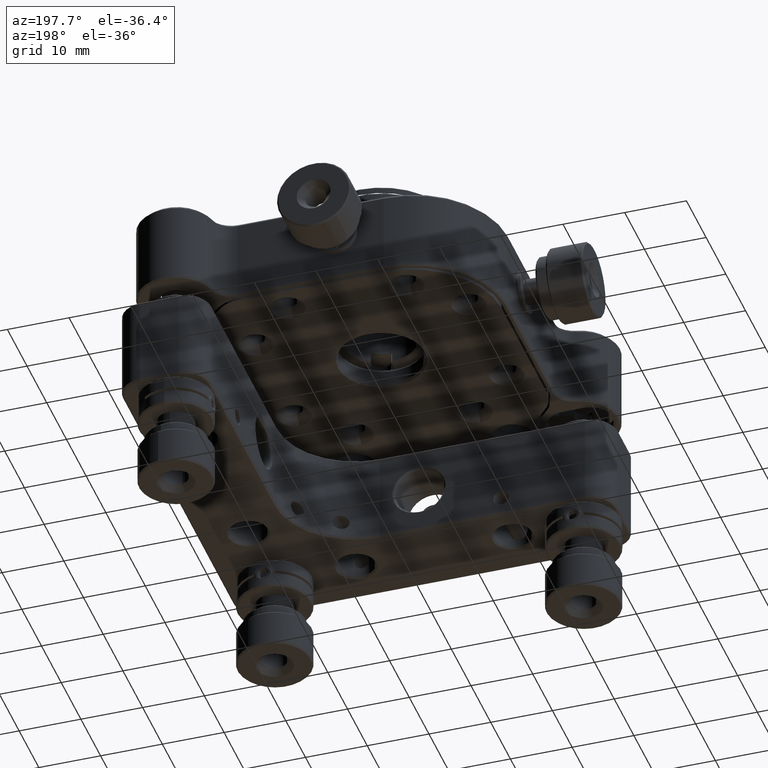
[diagram: clean part render]
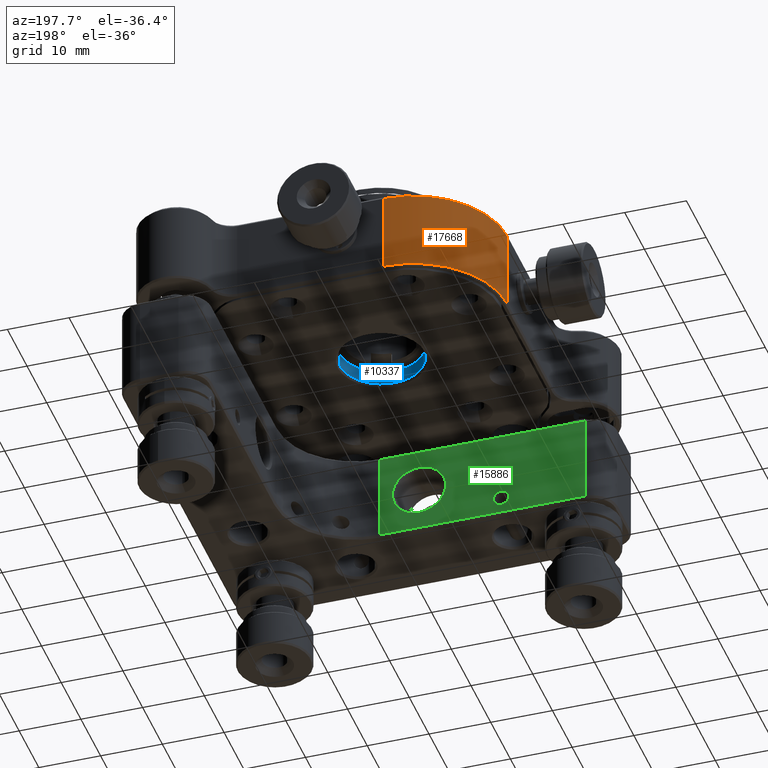
[diagram: same view with three faces highlighted in distinct colors, each labeled with its STEP entity id]
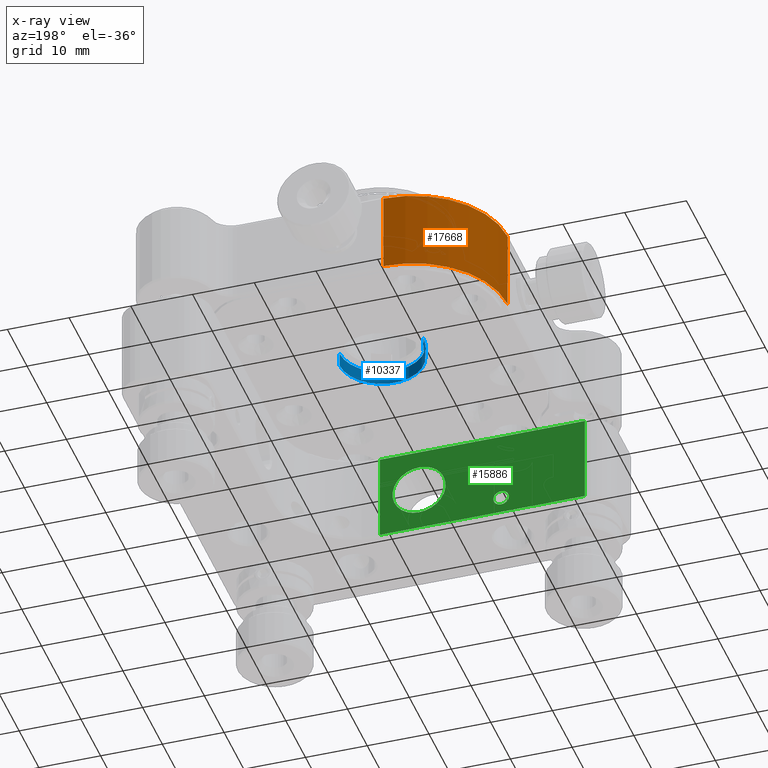
[diagram: x-ray of the same camera — body ghosted, the three highlighted faces saturated]
A machine part, auxiliary view with three faces highlighted in distinct colors.
The next image is the same camera in x-ray (body ghosted, the three faces saturated) — at least one of them is partly hidden behind the body in this view.
Their STEP definitions:

[orange] entity #17668 — the highlighted cylindrical surface (partial cylindrical patch) has radius 15.24 mm, axis along (0, 0, -1).
#113 = CYLINDRICAL_SURFACE ( 'NONE', #5315, 15.24000000000000021 ) ;
#407 = ORIENTED_EDGE ( 'NONE', *, *, #1366, .T. ) ;
#1366 = EDGE_CURVE ( 'NONE', #13804, #10016, #4451, .T. ) ;
#1644 = CARTESIAN_POINT ( 'NONE',  ( -5.080000000000000071, 5.080000000000000071, 7.683000000000000718 ) ) ;
#2543 = EDGE_CURVE ( 'NONE', #10016, #20684, #20025, .T. ) ;
#2690 = DIRECTION ( 'NONE',  ( 0.0000000000000000000, 0.0000000000000000000, -1.000000000000000000 ) ) ;
#3204 = CIRCLE ( 'NONE', #15581, 15.24000000000000021 ) ;
#3359 = VECTOR ( 'NONE', #2690, 1000.000000000000000 ) ;
#3549 = ORIENTED_EDGE ( 'NONE', *, *, #18022, .T. ) ;
#4451 = LINE ( 'NONE', #10968, #3359 ) ;
#4943 = EDGE_CURVE ( 'NONE', #18675, #20684, #11838, .T. ) ;
#5315 = AXIS2_PLACEMENT_3D ( 'NONE', #15496, #6768, #20218 ) ;
#5386 = CARTESIAN_POINT ( 'NONE',  ( -20.32000000000000028, 5.080000000000000071, -5.270999999999999908 ) ) ;
#6557 = DIRECTION ( 'NONE',  ( 1.000000000000000000, 0.0000000000000000000, 0.0000000000000000000 ) ) ;
#6699 = CARTESIAN_POINT ( 'NONE',  ( -5.080000000000000071, 20.32000000000000028, -5.270999999999999908 ) ) ;
#6768 = DIRECTION ( 'NONE',  ( 0.0000000000000000000, 0.0000000000000000000, -1.000000000000000000 ) ) ;
#6850 = DIRECTION ( 'NONE',  ( 1.000000000000000000, 0.0000000000000000000, 0.0000000000000000000 ) ) ;
#8309 = DIRECTION ( 'NONE',  ( 0.0000000000000000000, 0.0000000000000000000, -1.000000000000000000 ) ) ;
#8544 = CARTESIAN_POINT ( 'NONE',  ( -5.080000000000000071, 5.080000000000000071, -5.270999999999999908 ) ) ;
#8644 = CARTESIAN_POINT ( 'NONE',  ( -5.080000000000000071, 20.32000000000000028, 7.683000000000000718 ) ) ;
#10016 = VERTEX_POINT ( 'NONE', #6699 ) ;
#10172 = CARTESIAN_POINT ( 'NONE',  ( -20.32000000000000028, 5.080000000000000071, 8.444999999999998508 ) ) ;
#10190 = DIRECTION ( 'NONE',  ( 0.0000000000000000000, 0.0000000000000000000, 1.000000000000000000 ) ) ;
#10968 = CARTESIAN_POINT ( 'NONE',  ( -5.080000000000000071, 20.32000000000000028, 8.444999999999998508 ) ) ;
#11838 = LINE ( 'NONE', #10172, #12949 ) ;
#12949 = VECTOR ( 'NONE', #8309, 1000.000000000000000 ) ;
#12988 = AXIS2_PLACEMENT_3D ( 'NONE', #8544, #10190, #6557 ) ;
#13804 = VERTEX_POINT ( 'NONE', #8644 ) ;
#15496 = CARTESIAN_POINT ( 'NONE',  ( -5.080000000000000071, 5.080000000000000071, 8.444999999999998508 ) ) ;
#15581 = AXIS2_PLACEMENT_3D ( 'NONE', #1644, #18331, #6850 ) ;
#16130 = ORIENTED_EDGE ( 'NONE', *, *, #4943, .F. ) ;
#16760 = EDGE_LOOP ( 'NONE', ( #16130, #3549, #407, #19015 ) ) ;
#17668 = ADVANCED_FACE ( 'NONE', ( #21869 ), #113, .T. ) ;
#18022 = EDGE_CURVE ( 'NONE', #18675, #13804, #3204, .T. ) ;
#18250 = CARTESIAN_POINT ( 'NONE',  ( -20.32000000000000028, 5.080000000000000071, 7.683000000000000718 ) ) ;
#18331 = DIRECTION ( 'NONE',  ( 0.0000000000000000000, 0.0000000000000000000, -1.000000000000000000 ) ) ;
#18675 = VERTEX_POINT ( 'NONE', #18250 ) ;
#19015 = ORIENTED_EDGE ( 'NONE', *, *, #2543, .T. ) ;
#20025 = CIRCLE ( 'NONE', #12988, 15.24000000000000021 ) ;
#20218 = DIRECTION ( 'NONE',  ( -1.000000000000000000, 0.0000000000000000000, 0.0000000000000000000 ) ) ;
#20684 = VERTEX_POINT ( 'NONE', #5386 ) ;
#21869 = FACE_OUTER_BOUND ( 'NONE', #16760, .T. ) ;

[blue] entity #10337 — the highlighted cylindrical surface (partial cylindrical patch) has radius 6.7945 mm, axis along (-0, -0, -1).
#261 = DIRECTION ( 'NONE',  ( 1.979432085491225161E-34, 1.550593105024649954E-18, 1.000000000000000000 ) ) ;
#315 = AXIS2_PLACEMENT_3D ( 'NONE', #14659, #8136, #11341 ) ;
#1554 = CARTESIAN_POINT ( 'NONE',  ( -4.254499999999999282, -2.540000000000000036, -5.085059094877490971 ) ) ;
#1905 = EDGE_CURVE ( 'NONE', #17502, #8453, #8299, .T. ) ;
#2810 = CIRCLE ( 'NONE', #315, 6.794500000000000206 ) ;
#2990 = VERTEX_POINT ( 'NONE', #13548 ) ;
#4972 = DIRECTION ( 'NONE',  ( 5.204170427930419742E-18, -1.550593105024649954E-18, -1.000000000000000000 ) ) ;
#5950 = CARTESIAN_POINT ( 'NONE',  ( 9.334500000000000242, -2.540000000000000036, -5.085059094877490971 ) ) ;
#6420 = CARTESIAN_POINT ( 'NONE',  ( -4.254499999999999282, -2.540000000000000036, -2.350000000000000089 ) ) ;
#6957 = EDGE_LOOP ( 'NONE', ( #13800, #20074, #11567, #12816 ) ) ;
#7068 = CARTESIAN_POINT ( 'NONE',  ( 9.334500000000000242, -2.540000000000000036, -2.789940905122514803 ) ) ;
#8136 = DIRECTION ( 'NONE',  ( -1.979432085491225161E-34, -1.550593105024649954E-18, -1.000000000000000000 ) ) ;
#8299 = LINE ( 'NONE', #13158, #16852 ) ;
#8453 = VERTEX_POINT ( 'NONE', #5950 ) ;
#9041 = DIRECTION ( 'NONE',  ( -1.979432085491225161E-34, -1.550593105024649954E-18, -1.000000000000000000 ) ) ;
#9292 = VECTOR ( 'NONE', #9733, 1000.000000000000000 ) ;
#9733 = DIRECTION ( 'NONE',  ( 5.204170427930419742E-18, -1.550593105024649954E-18, -1.000000000000000000 ) ) ;
#10182 = EDGE_CURVE ( 'NONE', #2990, #17502, #21488, .T. ) ;
#10337 = ADVANCED_FACE ( 'NONE', ( #17538 ), #11007, .F. ) ;
#10891 = DIRECTION ( 'NONE',  ( 1.000000000000000000, -1.276564483020683708E-16, 0.0000000000000000000 ) ) ;
#11007 = CYLINDRICAL_SURFACE ( 'NONE', #14817, 6.794500000000000206 ) ;
#11341 = DIRECTION ( 'NONE',  ( 1.000000000000000000, -1.276564483020683708E-16, 0.0000000000000000000 ) ) ;
#11567 = ORIENTED_EDGE ( 'NONE', *, *, #1905, .T. ) ;
#12455 = CARTESIAN_POINT ( 'NONE',  ( 2.540000000000000036, -2.540000000000000036, -2.350000000000000089 ) ) ;
#12485 = VERTEX_POINT ( 'NONE', #1554 ) ;
#12816 = ORIENTED_EDGE ( 'NONE', *, *, #16823, .T. ) ;
#13158 = CARTESIAN_POINT ( 'NONE',  ( 9.334500000000000242, -2.540000000000000036, -2.350000000000000089 ) ) ;
#13548 = CARTESIAN_POINT ( 'NONE',  ( -4.254499999999999282, -2.540000000000000036, -2.789940905122514803 ) ) ;
#13800 = ORIENTED_EDGE ( 'NONE', *, *, #15108, .F. ) ;
#13867 = DIRECTION ( 'NONE',  ( 1.000000000000000000, -1.276564483020683708E-16, 0.0000000000000000000 ) ) ;
#14659 = CARTESIAN_POINT ( 'NONE',  ( 2.540000000000000036, -2.540000000000000036, -5.085059094877490971 ) ) ;
#14817 = AXIS2_PLACEMENT_3D ( 'NONE', #12455, #9041, #10891 ) ;
#15108 = EDGE_CURVE ( 'NONE', #2990, #12485, #21426, .T. ) ;
#15429 = CARTESIAN_POINT ( 'NONE',  ( 2.540000000000000036, -2.540000000000000036, -2.789940905122514803 ) ) ;
#16823 = EDGE_CURVE ( 'NONE', #8453, #12485, #2810, .T. ) ;
#16852 = VECTOR ( 'NONE', #4972, 1000.000000000000000 ) ;
#17502 = VERTEX_POINT ( 'NONE', #7068 ) ;
#17538 = FACE_OUTER_BOUND ( 'NONE', #6957, .T. ) ;
#20074 = ORIENTED_EDGE ( 'NONE', *, *, #10182, .T. ) ;
#20430 = AXIS2_PLACEMENT_3D ( 'NONE', #15429, #261, #13867 ) ;
#21426 = LINE ( 'NONE', #6420, #9292 ) ;
#21488 = CIRCLE ( 'NONE', #20430, 6.794500000000000206 ) ;

[green] entity #15886 — the highlighted planar face has unit normal (0, -1, -0).
#5 = VERTEX_POINT ( 'NONE', #10318 ) ;
#324 = EDGE_CURVE ( 'NONE', #20679, #2388, #14945, .T. ) ;
#786 = DIRECTION ( 'NONE',  ( 5.463291437797939957E-16, -1.000000000000000000, -1.203099312152369938E-17 ) ) ;
#1255 = CARTESIAN_POINT ( 'NONE',  ( -24.32099999999999795, -21.58999999999999986, -9.825000000000020606 ) ) ;
#1627 = DIRECTION ( 'NONE',  ( -1.000000000000000000, -5.463291437797939957E-16, 4.760512959350093720E-17 ) ) ;
#1963 = CARTESIAN_POINT ( 'NONE',  ( 8.890000000000000568, -21.58999999999999986, -24.22500000000000497 ) ) ;
#2009 = VECTOR ( 'NONE', #3378, 1000.000000000000000 ) ;
#2228 = CARTESIAN_POINT ( 'NONE',  ( -24.32099999999999795, -21.58999999999999986, -25.01899999999999835 ) ) ;
#2388 = VERTEX_POINT ( 'NONE', #7235 ) ;
#2582 = DIRECTION ( 'NONE',  ( 5.463291437797939957E-16, -1.000000000000000000, -1.203099312152369938E-17 ) ) ;
#2676 = DIRECTION ( 'NONE',  ( 1.000000000000000000, 8.068481283613033115E-16, 0.0000000000000000000 ) ) ;
#2901 = ORIENTED_EDGE ( 'NONE', *, *, #4802, .T. ) ;
#3378 = DIRECTION ( 'NONE',  ( 1.000000000000000000, 5.463291437797939957E-16, -4.760512959350109127E-17 ) ) ;
#3380 = VERTEX_POINT ( 'NONE', #18264 ) ;
#3527 = CIRCLE ( 'NONE', #6360, 1.249999999999999334 ) ;
#3889 = ORIENTED_EDGE ( 'NONE', *, *, #17543, .T. ) ;
#4008 = EDGE_LOOP ( 'NONE', ( #7051, #2901 ) ) ;
#4014 = AXIS2_PLACEMENT_3D ( 'NONE', #7457, #2582, #21132 ) ;
#4562 = ORIENTED_EDGE ( 'NONE', *, *, #324, .F. ) ;
#4802 = EDGE_CURVE ( 'NONE', #6580, #6126, #19577, .T. ) ;
#5916 = EDGE_CURVE ( 'NONE', #13175, #2388, #20164, .T. ) ;
#6126 = VERTEX_POINT ( 'NONE', #11537 ) ;
#6360 = AXIS2_PLACEMENT_3D ( 'NONE', #15584, #10585, #13702 ) ;
#6580 = VERTEX_POINT ( 'NONE', #14798 ) ;
#6616 = DIRECTION ( 'NONE',  ( 0.0000000000000000000, -1.000000000000000000, -1.203099312152369938E-17 ) ) ;
#7051 = ORIENTED_EDGE ( 'NONE', *, *, #14133, .T. ) ;
#7136 = CARTESIAN_POINT ( 'NONE',  ( 8.890000000000000568, -21.58999999999998920, -9.825000000000022382 ) ) ;
#7235 = CARTESIAN_POINT ( 'NONE',  ( 8.890000000000000568, -21.58999999999999986, -9.825000000000022382 ) ) ;
#7237 = FACE_BOUND ( 'NONE', #4008, .T. ) ;
#7457 = CARTESIAN_POINT ( 'NONE',  ( -16.51188083652389693, -21.58999999999999986, -25.01899999999999835 ) ) ;
#7581 = AXIS2_PLACEMENT_3D ( 'NONE', #21727, #6616, #13350 ) ;
#10048 = CIRCLE ( 'NONE', #17110, 4.300000000000012257 ) ;
#10065 = AXIS2_PLACEMENT_3D ( 'NONE', #14390, #786, #2676 ) ;
#10318 = CARTESIAN_POINT ( 'NONE',  ( -24.32099999999999795, -21.58999999999999986, -24.22500000000000497 ) ) ;
#10585 = DIRECTION ( 'NONE',  ( 0.0000000000000000000, -1.000000000000000000, -1.203099312152369938E-17 ) ) ;
#10723 = DIRECTION ( 'NONE',  ( 4.760512959350109744E-17, -1.203099312152367935E-17, 1.000000000000000000 ) ) ;
#10803 = DIRECTION ( 'NONE',  ( 1.000000000000000000, 8.068481283613033115E-16, 0.0000000000000000000 ) ) ;
#11094 = ORIENTED_EDGE ( 'NONE', *, *, #20715, .T. ) ;
#11130 = ORIENTED_EDGE ( 'NONE', *, *, #14025, .T. ) ;
#11537 = CARTESIAN_POINT ( 'NONE',  ( 2.543999999999971617, -21.58999999999999275, -12.72499999999999254 ) ) ;
#11732 = CARTESIAN_POINT ( 'NONE',  ( 8.890000000000000568, -21.58999999999999986, -25.01899999999999835 ) ) ;
#12072 = LINE ( 'NONE', #2228, #12422 ) ;
#12333 = VERTEX_POINT ( 'NONE', #16264 ) ;
#12422 = VECTOR ( 'NONE', #10723, 1000.000000000000000 ) ;
#12542 = PLANE ( 'NONE',  #4014 ) ;
#13009 = EDGE_LOOP ( 'NONE', ( #11130, #3889 ) ) ;
#13175 = VERTEX_POINT ( 'NONE', #1255 ) ;
#13189 = VECTOR ( 'NONE', #1627, 1000.000000000000000 ) ;
#13343 = CARTESIAN_POINT ( 'NONE',  ( -24.32099999999999795, -21.59000000000000341, -24.22500000000000497 ) ) ;
#13350 = DIRECTION ( 'NONE',  ( 1.000000000000000000, 0.0000000000000000000, 0.0000000000000000000 ) ) ;
#13380 = VECTOR ( 'NONE', #19890, 1000.000000000000000 ) ;
#13702 = DIRECTION ( 'NONE',  ( 1.000000000000000000, 0.0000000000000000000, 0.0000000000000000000 ) ) ;
#14022 = CARTESIAN_POINT ( 'NONE',  ( 2.543999999999971617, -21.58999999999999275, -17.02500000000000568 ) ) ;
#14025 = EDGE_CURVE ( 'NONE', #3380, #12333, #14996, .T. ) ;
#14133 = EDGE_CURVE ( 'NONE', #6126, #6580, #10048, .T. ) ;
#14352 = DIRECTION ( 'NONE',  ( 5.463291437797939957E-16, -1.000000000000000000, -1.203099312152369938E-17 ) ) ;
#14390 = CARTESIAN_POINT ( 'NONE',  ( 2.543999999999971617, -21.58999999999999275, -17.02500000000000568 ) ) ;
#14798 = CARTESIAN_POINT ( 'NONE',  ( 2.543999999999972061, -21.58999999999999275, -21.32500000000001705 ) ) ;
#14804 = EDGE_CURVE ( 'NONE', #5, #13175, #12072, .T. ) ;
#14945 = LINE ( 'NONE', #11732, #13380 ) ;
#14996 = CIRCLE ( 'NONE', #7581, 1.249999999999999334 ) ;
#15584 = CARTESIAN_POINT ( 'NONE',  ( -10.74787746154799883, -21.58999999999999986, -21.52499999999999858 ) ) ;
#15886 = ADVANCED_FACE ( 'NONE', ( #7237, #17729, #20691 ), #12542, .F. ) ;
#16112 = ORIENTED_EDGE ( 'NONE', *, *, #5916, .T. ) ;
#16264 = CARTESIAN_POINT ( 'NONE',  ( -10.74787746154799883, -21.58999999999999986, -20.27500000000000213 ) ) ;
#16769 = LINE ( 'NONE', #13343, #13189 ) ;
#17110 = AXIS2_PLACEMENT_3D ( 'NONE', #14022, #14352, #10803 ) ;
#17543 = EDGE_CURVE ( 'NONE', #12333, #3380, #3527, .T. ) ;
#17729 = FACE_BOUND ( 'NONE', #13009, .T. ) ;
#18040 = EDGE_LOOP ( 'NONE', ( #4562, #11094, #21660, #16112 ) ) ;
#18264 = CARTESIAN_POINT ( 'NONE',  ( -10.74787746154799883, -21.58999999999999986, -22.77499999999999858 ) ) ;
#19577 = CIRCLE ( 'NONE', #10065, 4.300000000000012257 ) ;
#19890 = DIRECTION ( 'NONE',  ( 4.760512959350109744E-17, -1.203099312152367935E-17, 1.000000000000000000 ) ) ;
#20164 = LINE ( 'NONE', #7136, #2009 ) ;
#20679 = VERTEX_POINT ( 'NONE', #1963 ) ;
#20691 = FACE_OUTER_BOUND ( 'NONE', #18040, .T. ) ;
#20715 = EDGE_CURVE ( 'NONE', #20679, #5, #16769, .T. ) ;
#21132 = DIRECTION ( 'NONE',  ( 0.0000000000000000000, 1.203099312152369938E-17, -1.000000000000000000 ) ) ;
#21660 = ORIENTED_EDGE ( 'NONE', *, *, #14804, .T. ) ;
#21727 = CARTESIAN_POINT ( 'NONE',  ( -10.74787746154799883, -21.58999999999999986, -21.52499999999999858 ) ) ;